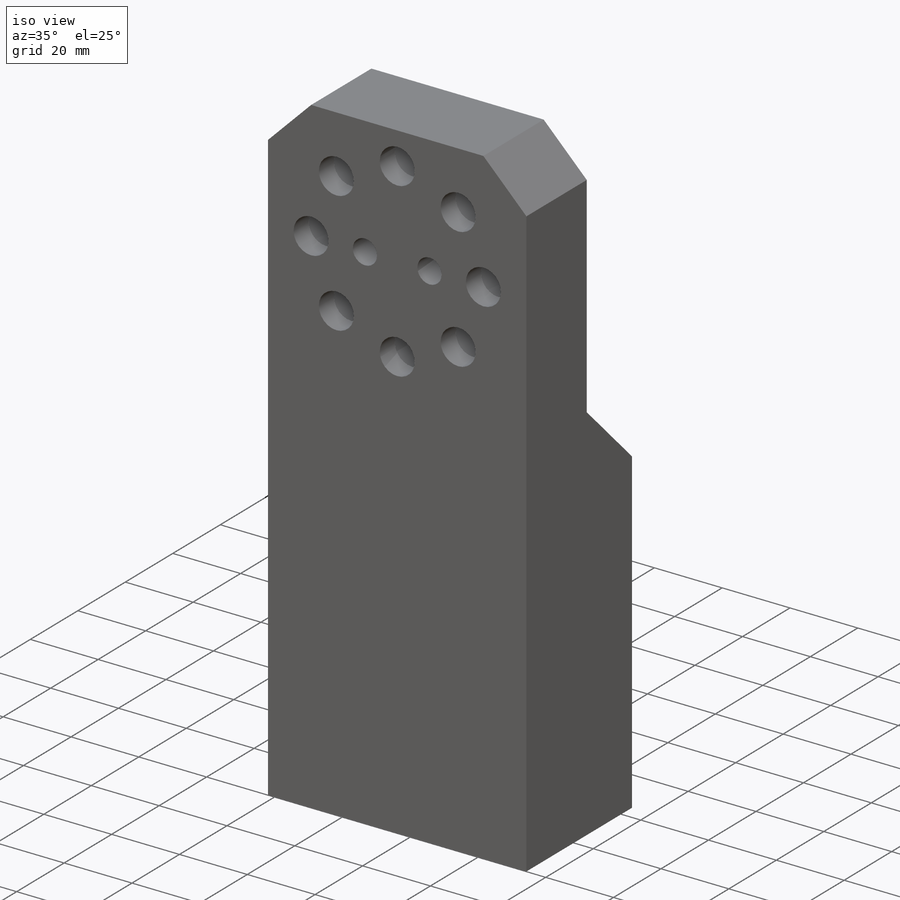
[diagram: iso view]
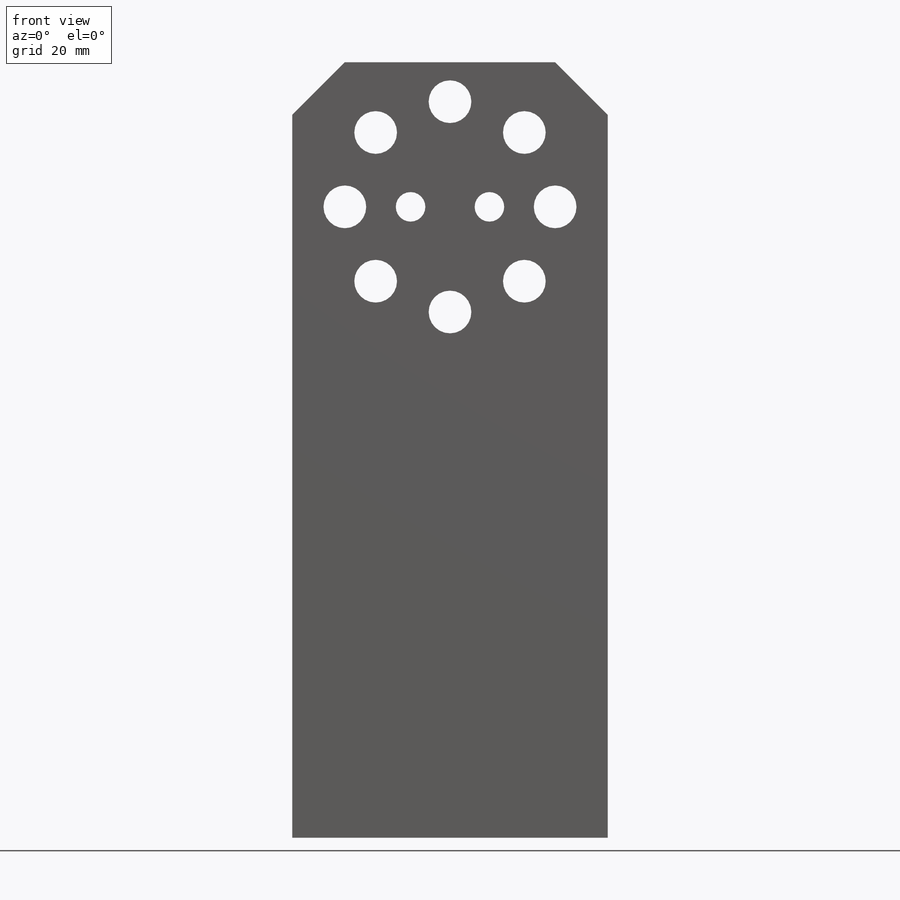
[diagram: front view]
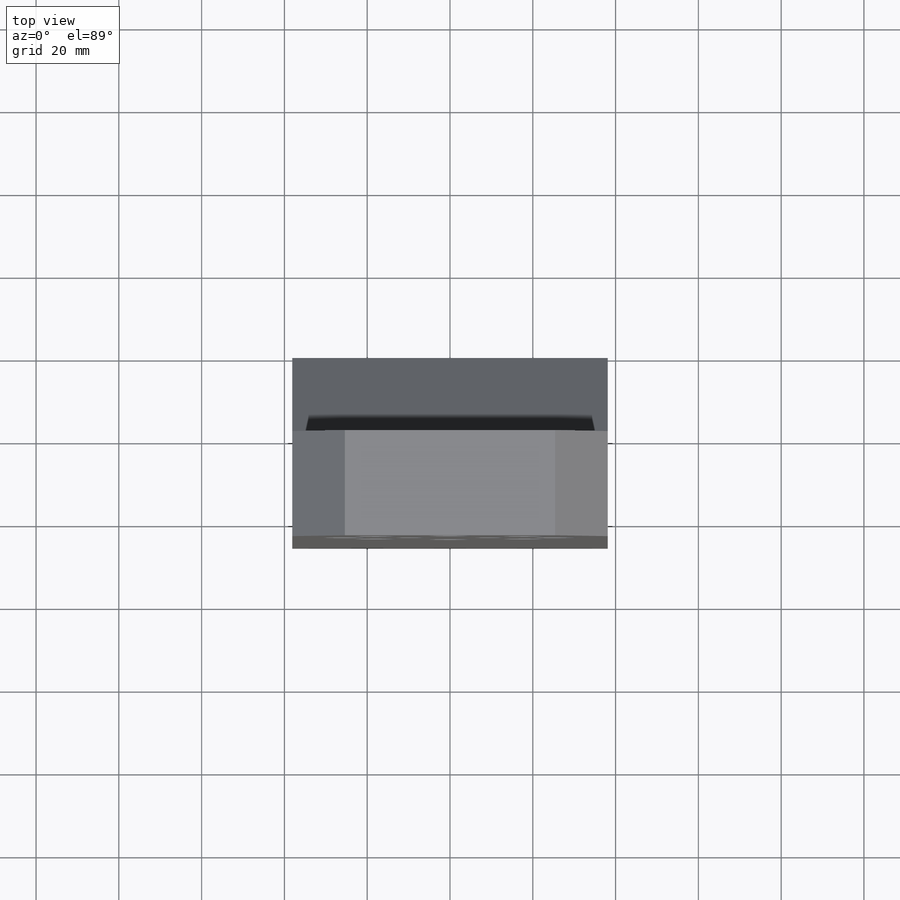
[diagram: top view]
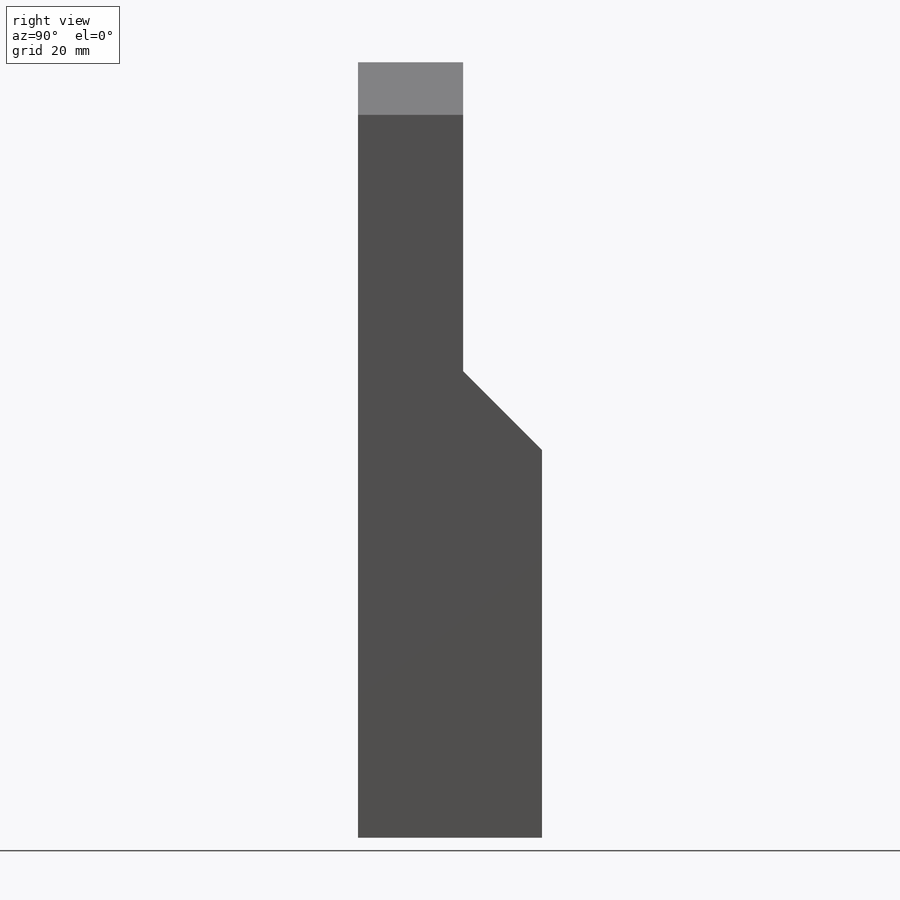
[diagram: right view]
SOLIDWORKS PART (.sldprt)
format: sldprt  version: not decoded by parser v0  size: 357,376 bytes
history: native  units: mm
features: sketch x8, thread x4, hole x3, extrude x2, chamfer x2, material x1, pattern_circular x1 + 1 further entry (+13 scaffold rows collapsed)
feature tree (35):
  scaffold x13  (default folders/planes/origin — collapsed)
  material  "Alloy Steel"
  "Origin"  ID=-1
  sketch  "Sketch1"  dims[D1=76.2mm D2=34.925mm D3=76.2mm D4=152.4mm]
  extrude  "Boss-Extrude1"  Depth=25.4mm
  hole  "CBORE for 3/8 Socket Head Cap Screw1"  Diameter=10.31748mm Depth=25.4mm
  sketch  "Sketch5"  dims[D1=25.4mm]
  sketch  "Sketch4"  dims[hole-wizard template sketch: 43 standard entries collapsed; hole parameters kept: c12.C'Bore Dia.=15.875mm c12.C'Bore Depth=19.05mm]
  pattern_circular  "CirPattern1"  Count=8 Angle=45deg
  sketch  "Sketch7"
  extrude  "Boss-Extrude3"  Depth=19.05mm
  chamfer  "Chamfer1"  Distance=19.05mm Angle=45deg
  chamfer  "Chamfer2"  Distance=12.7mm Angle=45deg
  hole  "1/2-13 Tapped Hole1"  Diameter=10.71626mm Depth=47.879mm
  sketch  "Sketch9"  dims[c1.D1=17.2974mm c1.D2=25.4mm c1.D3=57.15mm c2.D1=9.525mm]
  sketch  "Sketch8"  dims[hole-wizard template sketch: 47 standard entries collapsed; hole parameters kept: c15.Tap Drill Depth=47.879mm c15.D3=~14.816244mm c15.Drill Angle=118.0deg]
  thread  "Hole Thread1"  Diameter=38.1mm  [1 undecoded]
  thread  "Hole Thread2"  Diameter=38.1mm  [1 undecoded]
  thread  "Hole Thread3"  Diameter=38.1mm  [1 undecoded]
  thread  "Hole Thread4"  Diameter=38.1mm  [1 undecoded]
  hole  "CBORE for 1/4 Socket Head Cap Screw1"  Diameter=7.14248mm Depth=25.4mm
  sketch  "Sketch12"  dims[D1=9.525mm]
  sketch  "Sketch11"  dims[hole-wizard template sketch: 42 standard entries collapsed; hole parameters kept: c12.Thru Hole Depth=25.4mm c12.C'Bore Dia.=11.1125mm c12.C'Bore Depth=9.525mm]
decode coverage: 19 of 20 modeling features carry decoded parameters; 1 rows unclassified (native names shown)
note: ~ marks probable driven/reference dimensions
note: 4 parameter values undecoded
note: suppression state not decoded; provenance and decode notes live in map.json
